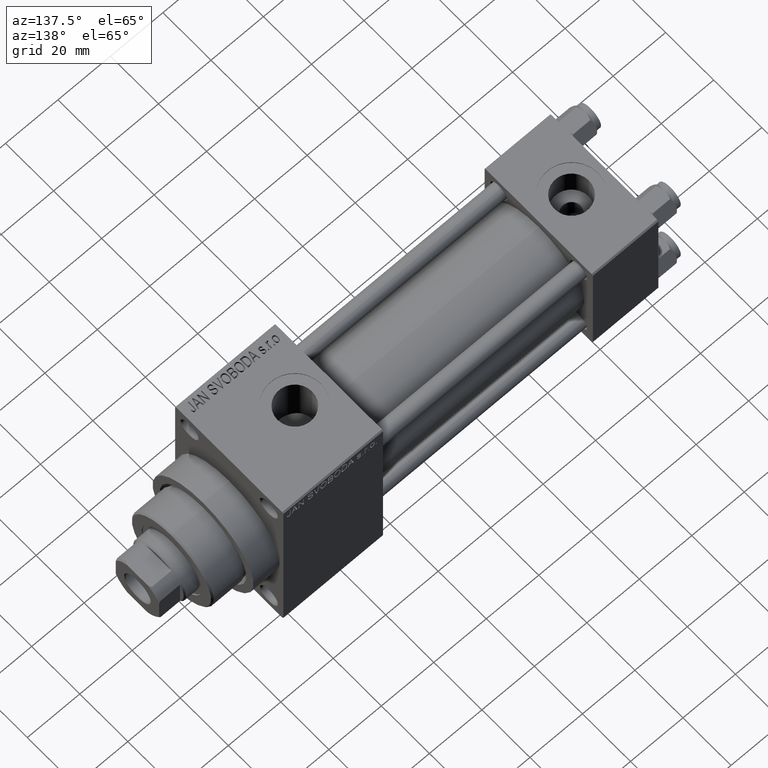
[diagram: clean part render]
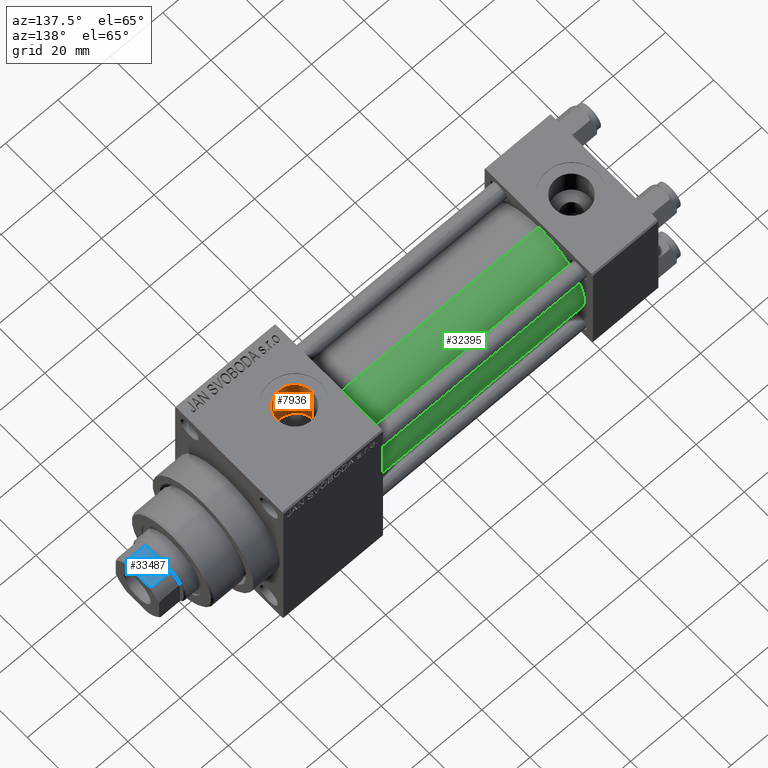
[diagram: same view with three faces highlighted in distinct colors, each labeled with its STEP entity id]
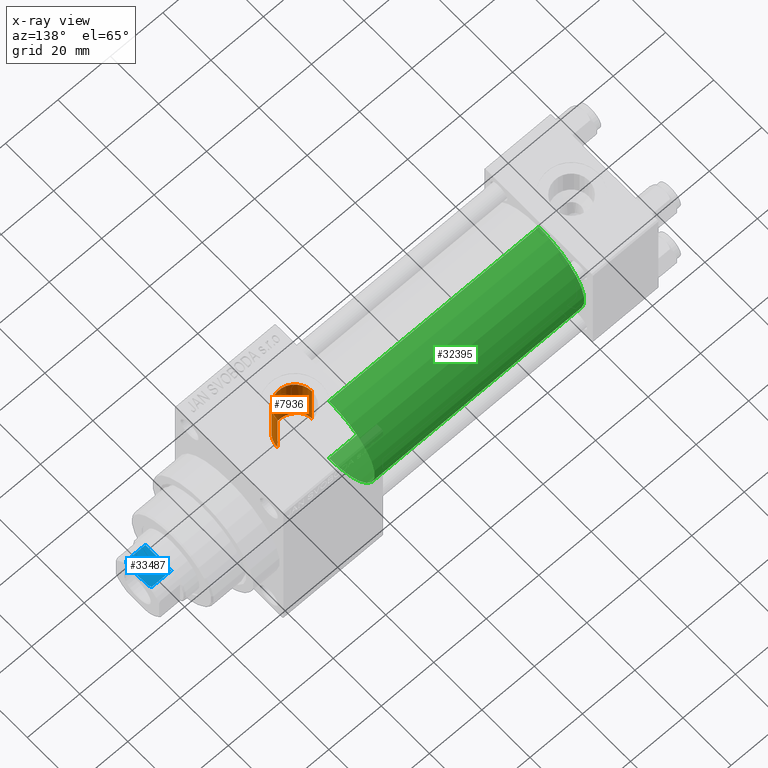
[diagram: x-ray of the same camera — body ghosted, the three highlighted faces saturated]
A machine part, auxiliary view with three faces highlighted in distinct colors.
The next image is the same camera in x-ray (body ghosted, the three faces saturated) — at least one of them is partly hidden behind the body in this view.
Their STEP definitions:

[orange] entity #7936 — the highlighted cylindrical surface (edge-blend (fillet) strip) has radius 6.58 mm, axis along (0, 0, -1).
#297 = VERTEX_POINT ( 'NONE', #19625 ) ;
#638 = CARTESIAN_POINT ( 'NONE',  ( 115.2704440975029598, -5.990990564077421254, 15.37419640914568397 ) ) ;
#668 = VECTOR ( 'NONE', #22380, 1000.000000000000000 ) ;
#692 = EDGE_LOOP ( 'NONE', ( #19908, #41699, #18288, #15638 ) ) ;
#860 = CARTESIAN_POINT ( 'NONE',  ( 118.4344031248852644, -6.579948996094833191, 15.13123495329705115 ) ) ;
#1037 = EDGE_CURVE ( 'NONE', #21866, #297, #20743, .T. ) ;
#2705 = AXIS2_PLACEMENT_3D ( 'NONE', #8547, #10452, #6847 ) ;
#3508 = CARTESIAN_POINT ( 'NONE',  ( 124.5693519230899255, -0.4330170479737218692, 16.49574474005546776 ) ) ;
#3750 = CARTESIAN_POINT ( 'NONE',  ( 122.0172106480719094, -5.228695620197086669, 15.65163649699630177 ) ) ;
#3982 = CARTESIAN_POINT ( 'NONE',  ( 123.8958771110817025, -2.929411359312366514, 16.23902307131298528 ) ) ;
#4228 = CARTESIAN_POINT ( 'NONE',  ( 124.5800000000000125, 2.020737417192725116E-15, 16.50000000000000000 ) ) ;
#4451 = CARTESIAN_POINT ( 'NONE',  ( 123.6916196678518531, -3.308819030646350079, 16.16598397392302999 ) ) ;
#4676 = LINE ( 'NONE', #33342, #668 ) ;
#4677 = DIRECTION ( 'NONE',  ( 0.000000000000000000, 0.000000000000000000, -1.000000000000000000 ) ) ;
#5835 = EDGE_CURVE ( 'NONE', #12699, #297, #37610, .T. ) ;
#6847 = DIRECTION ( 'NONE',  ( -1.000000000000000000, 0.000000000000000000, 0.000000000000000000 ) ) ;
#7327 = CARTESIAN_POINT ( 'NONE',  ( 115.8646282407915180, -6.238650567619522747, 15.27615042340678464 ) ) ;
#7800 = CARTESIAN_POINT ( 'NONE',  ( 114.6970156641613698, -5.695005786951583993, 15.48640557649249594 ) ) ;
#7936 = ADVANCED_FACE ( 'NONE', ( #26689 ), #41233, .F. ) ;
#8268 = CARTESIAN_POINT ( 'NONE',  ( 123.5810205429407205, -3.491996794519804492, 16.12727173852116280 ) ) ;
#8547 = CARTESIAN_POINT ( 'NONE',  ( 118.0000000000000142, 0.000000000000000000, 57.80000000000000426 ) ) ;
#10452 = DIRECTION ( 'NONE',  ( 0.000000000000000000, 0.000000000000000000, -1.000000000000000000 ) ) ;
#10914 = CARTESIAN_POINT ( 'NONE',  ( 114.5117512242745619, -5.583385690412080216, 15.52712872271769129 ) ) ;
#11161 = CARTESIAN_POINT ( 'NONE',  ( 124.5799999999999983, -0.2163951708881202696, 16.50000000000000355 ) ) ;
#11393 = CARTESIAN_POINT ( 'NONE',  ( 111.4200000000000017, 0.000000000000000000, 34.80000000000000426 ) ) ;
#11396 = CARTESIAN_POINT ( 'NONE',  ( 115.0765434455241802, -5.898830240844358919, 15.40992051837809207 ) ) ;
#11864 = CARTESIAN_POINT ( 'NONE',  ( 119.7233277476320694, -6.365022863224917060, 15.22317612495509742 ) ) ;
#12699 = VERTEX_POINT ( 'NONE', #11393 ) ;
#14505 = CARTESIAN_POINT ( 'NONE',  ( 122.3456735482257471, -4.959413873912082771, 15.74020882788467190 ) ) ;
#14739 = CARTESIAN_POINT ( 'NONE',  ( 124.4936266408539751, -1.084660904079432386, 16.46569860783879946 ) ) ;
#14987 = CARTESIAN_POINT ( 'NONE',  ( 113.6512765868668424, -4.956532837095939392, 15.74108251321745477 ) ) ;
#15221 = CARTESIAN_POINT ( 'NONE',  ( 112.2986720018100470, -3.312456786379075702, 16.16814806842722874 ) ) ;
#15442 = CARTESIAN_POINT ( 'NONE',  ( 121.4873752317757862, -5.583889666953453457, 15.52694180828872206 ) ) ;
#15638 = ORIENTED_EDGE ( 'NONE', *, *, #5835, .F. ) ;
#16351 = VECTOR ( 'NONE', #4677, 1000.000000000000000 ) ;
#16693 = EDGE_CURVE ( 'NONE', #30249, #21866, #4676, .T. ) ;
#16978 = DIRECTION ( 'NONE',  ( 1.000000000000000000, 0.000000000000000000, 0.000000000000000000 ) ) ;
#18288 = ORIENTED_EDGE ( 'NONE', *, *, #1037, .T. ) ;
#18319 = CARTESIAN_POINT ( 'NONE',  ( 120.7293470147492229, -5.991105852953032773, 15.37415267966568422 ) ) ;
#18553 = CARTESIAN_POINT ( 'NONE',  ( 111.7609782879799667, -2.135290433773736396, 16.36627272964048885 ) ) ;
#18796 = CARTESIAN_POINT ( 'NONE',  ( 123.9894945036596283, -2.732918497916949185, 16.27334343707126862 ) ) ;
#19025 = CARTESIAN_POINT ( 'NONE',  ( 122.9531748106135893, -4.352783460729912512, 15.91864429096167477 ) ) ;
#19625 = CARTESIAN_POINT ( 'NONE',  ( 111.4200000000000017, 0.000000000000000000, 16.50000000000000000 ) ) ;
#19908 = ORIENTED_EDGE ( 'NONE', *, *, #21626, .F. ) ;
#20743 = B_SPLINE_CURVE_WITH_KNOTS ( 'NONE', 3,
 ( #4228, #11161, #3508, #29981, #14739, #32618, #21899, #18796, #3982, #4451, #8268, #25951, #19025, #14505, #3750, #15442, #40018, #44302, #18319, #44535, #11864, #33568, #860, #33341, #47164, #40484, #7327, #638, #11396, #7800, #10914, #37156, #14987, #32855, #29045, #22614, #29283, #15221, #25720, #18553, #40727, #43587, #25483, #33097, #26179, #44071 ),
 .UNSPECIFIED., .F., .F.,
 ( 4, 2, 2, 2, 2, 2, 2, 2, 2, 2, 2, 2, 2, 2, 2, 2, 2, 2, 2, 2, 2, 2, 4 ),
 ( 0.02079064982460944802, 0.02143993797161907258, 0.02208922611862870061, 0.02338780241264794973, 0.02403709055965757777, 0.02468637870666720233, 0.02598495500068645492, 0.02728353129470570751, 0.02793281944171533554, 0.02858210758872496010, 0.02988068388274421616, 0.03117926017676346875, 0.03247783647078272135, 0.03377641276480197741, 0.03442570091181162278, 0.03507498905882126816, 0.03637356535284055892, 0.03702285349985022511, 0.03767214164685988437, 0.03897071794087918206, 0.04026929423489847976, 0.04091858238190813207, 0.04156787052891778439 ),
 .UNSPECIFIED. ) ;
#21220 = CARTESIAN_POINT ( 'NONE',  ( 124.5800000000000125, 8.058175938389587461E-16, 34.80000000000000426 ) ) ;
#21626 = EDGE_CURVE ( 'NONE', #30249, #12699, #36503, .T. ) ;
#21866 = VERTEX_POINT ( 'NONE', #35748 ) ;
#21899 = CARTESIAN_POINT ( 'NONE',  ( 124.2385873138240981, -2.135972853361014501, 16.36611806502121880 ) ) ;
#22380 = DIRECTION ( 'NONE',  ( 0.000000000000000000, 0.000000000000000000, -1.000000000000000000 ) ) ;
#22614 = CARTESIAN_POINT ( 'NONE',  ( 112.7814372671216319, -4.013576357769045089, 16.00532411629096075 ) ) ;
#24382 = DIRECTION ( 'NONE',  ( -0.000000000000000000, -0.000000000000000000, -1.000000000000000000 ) ) ;
#25483 = CARTESIAN_POINT ( 'NONE',  ( 111.4745292428209780, -0.8729223525547649132, 16.47831822833177995 ) ) ;
#25720 = CARTESIAN_POINT ( 'NONE',  ( 112.0955875116135303, -2.936455401774155316, 16.24166179831764367 ) ) ;
#25951 = CARTESIAN_POINT ( 'NONE',  ( 123.2244743407041625, -4.022809406120919640, 16.00620960271934834 ) ) ;
#26179 = CARTESIAN_POINT ( 'NONE',  ( 111.4199999999999591, -0.2197034552520739370, 16.50000000000000000 ) ) ;
#26589 = AXIS2_PLACEMENT_3D ( 'NONE', #46305, #24382, #16978 ) ;
#26689 = FACE_OUTER_BOUND ( 'NONE', #692, .T. ) ;
#29045 = CARTESIAN_POINT ( 'NONE',  ( 113.0532431112273173, -4.344167176802685049, 15.91877529168490568 ) ) ;
#29283 = CARTESIAN_POINT ( 'NONE',  ( 112.6543148114479180, -3.842567838182976647, 16.04735236386413533 ) ) ;
#29981 = CARTESIAN_POINT ( 'NONE',  ( 124.5263067313305356, -0.8667230825533497329, 16.47864950143284091 ) ) ;
#30249 = VERTEX_POINT ( 'NONE', #21220 ) ;
#32618 = CARTESIAN_POINT ( 'NONE',  ( 124.3649702280102929, -1.724140048583717943, 16.41524354912109018 ) ) ;
#32855 = CARTESIAN_POINT ( 'NONE',  ( 113.1983176667528852, -4.503976026009450351, 15.87415900356346121 ) ) ;
#33097 = CARTESIAN_POINT ( 'NONE',  ( 111.4311107855824616, -0.4398369301202784687, 16.49556026761938909 ) ) ;
#33341 = CARTESIAN_POINT ( 'NONE',  ( 117.5671433863462880, -6.580050913035224269, 15.13119063342181470 ) ) ;
#33342 = CARTESIAN_POINT ( 'NONE',  ( 124.5800000000000125, 8.058175938389587461E-16, 57.80000000000000426 ) ) ;
#33568 = CARTESIAN_POINT ( 'NONE',  ( 118.8755479247938780, -6.535808320821816508, 15.15063751048962004 ) ) ;
#35748 = CARTESIAN_POINT ( 'NONE',  ( 124.5800000000000125, 2.020737417192725116E-15, 16.50000000000000000 ) ) ;
#36503 = CIRCLE ( 'NONE', #26589, 6.580000000000002736 ) ;
#37156 = CARTESIAN_POINT ( 'NONE',  ( 113.9793091232680950, -5.226198047410674619, 15.65249317291698006 ) ) ;
#37610 = LINE ( 'NONE', #41665, #16351 ) ;
#40018 = CARTESIAN_POINT ( 'NONE',  ( 121.3045241876004923, -5.694098518824309174, 15.48673832717016907 ) ) ;
#40484 = CARTESIAN_POINT ( 'NONE',  ( 116.2794568737979120, -6.366079531685832293, 15.22273693247449877 ) ) ;
#40727 = CARTESIAN_POINT ( 'NONE',  ( 111.6344193444326720, -1.720971494404684776, 16.41548328929544809 ) ) ;
#41233 = CYLINDRICAL_SURFACE ( 'NONE', #2705, 6.580000000000002736 ) ;
#41665 = CARTESIAN_POINT ( 'NONE',  ( 111.4200000000000017, 0.000000000000000000, 57.80000000000000426 ) ) ;
#41699 = ORIENTED_EDGE ( 'NONE', *, *, #16693, .T. ) ;
#43587 = CARTESIAN_POINT ( 'NONE',  ( 111.5067982580907398, -1.086839974714738810, 16.46553180118348791 ) ) ;
#44071 = CARTESIAN_POINT ( 'NONE',  ( 111.4200000000000017, 0.000000000000000000, 16.50000000000000000 ) ) ;
#44302 = CARTESIAN_POINT ( 'NONE',  ( 120.9257113986630969, -5.897698776662511300, 15.41035272458331207 ) ) ;
#44535 = CARTESIAN_POINT ( 'NONE',  ( 120.1335790717017602, -6.239341168555348816, 15.27587318676771488 ) ) ;
#46305 = CARTESIAN_POINT ( 'NONE',  ( 118.0000000000000142, 0.000000000000000000, 34.80000000000000426 ) ) ;
#47164 = CARTESIAN_POINT ( 'NONE',  ( 117.1361420313382808, -6.537659111857249350, 15.14984163799154260 ) ) ;

[blue] entity #33487 — the highlighted planar face has unit normal (0, 0, -1).
#427 = LINE ( 'NONE', #36690, #26250 ) ;
#713 = ORIENTED_EDGE ( 'NONE', *, *, #37583, .T. ) ;
#1390 = ORIENTED_EDGE ( 'NONE', *, *, #44642, .T. ) ;
#1484 = CARTESIAN_POINT ( 'NONE',  ( -9.000000000000001776, -9.000000000000001776, 153.0000000000000284 ) ) ;
#1800 = CARTESIAN_POINT ( 'NONE',  ( 5.063687070142450786, -8.999999999999998224, 152.6775166608139500 ) ) ;
#5578 = B_SPLINE_CURVE_WITH_KNOTS ( 'NONE', 3,
 ( #42909, #24798, #39792, #29060 ),
 .UNSPECIFIED., .F., .F.,
 ( 4, 4 ),
 ( 0.000000000000000000, 0.001162453897363188238 ),
 .UNSPECIFIED. ) ;
#6305 = ORIENTED_EDGE ( 'NONE', *, *, #12363, .T. ) ;
#8015 = CARTESIAN_POINT ( 'NONE',  ( 5.408326913195988794, -8.999999999999998224, 152.5000000000000568 ) ) ;
#11640 = AXIS2_PLACEMENT_3D ( 'NONE', #1484, #37764, #37999 ) ;
#12349 = VECTOR ( 'NONE', #17431, 1000.000000000000000 ) ;
#12363 = EDGE_CURVE ( 'NONE', #42581, #38951, #18136, .T. ) ;
#12371 = EDGE_CURVE ( 'NONE', #23880, #24945, #42716, .T. ) ;
#12958 = PLANE ( 'NONE',  #11640 ) ;
#13137 = B_SPLINE_CURVE_WITH_KNOTS ( 'NONE', 3,
 ( #16850, #1800, #30913, #45471 ),
 .UNSPECIFIED., .F., .F.,
 ( 4, 4 ),
 ( 0.000000000000000000, 0.001162453897363177830 ),
 .UNSPECIFIED. ) ;
#13523 = VECTOR ( 'NONE', #36016, 1000.000000000000000 ) ;
#14652 = EDGE_LOOP ( 'NONE', ( #6305, #1390, #28955, #46591, #32692, #713 ) ) ;
#15007 = DIRECTION ( 'NONE',  ( 1.000000000000000000, 0.000000000000000000, 0.000000000000000000 ) ) ;
#16850 = CARTESIAN_POINT ( 'NONE',  ( 5.408326913195988794, -8.999999999999998224, 152.5000000000000568 ) ) ;
#17431 = DIRECTION ( 'NONE',  ( 1.000000000000000000, 0.000000000000000000, 0.000000000000000000 ) ) ;
#18136 = LINE ( 'NONE', #31740, #43204 ) ;
#20624 = CARTESIAN_POINT ( 'NONE',  ( 4.358898943540679305, -9.000000000000001776, 153.0000000000000284 ) ) ;
#21944 = CARTESIAN_POINT ( 'NONE',  ( -9.000000000000001776, -9.000000000000001776, 153.0000000000000284 ) ) ;
#23074 = CARTESIAN_POINT ( 'NONE',  ( -5.408326913195988794, -8.999999999999998224, 152.5000000000000284 ) ) ;
#23880 = VERTEX_POINT ( 'NONE', #39599 ) ;
#24798 = CARTESIAN_POINT ( 'NONE',  ( -4.714305797500255579, -9.000000000000001776, 152.8450817439748732 ) ) ;
#24945 = VERTEX_POINT ( 'NONE', #23074 ) ;
#25289 = LINE ( 'NONE', #21944, #12349 ) ;
#25699 = CARTESIAN_POINT ( 'NONE',  ( 5.408326913195988794, -8.999999999999998224, 145.0000000000000284 ) ) ;
#26250 = VECTOR ( 'NONE', #15007, 1000.000000000000000 ) ;
#27628 = VERTEX_POINT ( 'NONE', #45341 ) ;
#27819 = EDGE_CURVE ( 'NONE', #27628, #37765, #25289, .T. ) ;
#27938 = CARTESIAN_POINT ( 'NONE',  ( -5.408326913195988794, -8.999999999999998224, -0.001000000000001000089 ) ) ;
#28955 = ORIENTED_EDGE ( 'NONE', *, *, #27819, .F. ) ;
#29060 = CARTESIAN_POINT ( 'NONE',  ( -5.408326913195988794, -8.999999999999998224, 152.5000000000000284 ) ) ;
#30913 = CARTESIAN_POINT ( 'NONE',  ( 4.714305797500247586, -9.000000000000001776, 152.8450817439748732 ) ) ;
#31740 = CARTESIAN_POINT ( 'NONE',  ( 5.408326913195988794, -8.999999999999998224, -0.001000000000001000089 ) ) ;
#32692 = ORIENTED_EDGE ( 'NONE', *, *, #12371, .F. ) ;
#33487 = ADVANCED_FACE ( 'NONE', ( #37522 ), #12958, .F. ) ;
#36016 = DIRECTION ( 'NONE',  ( -0.000000000000000000, -0.000000000000000000, 1.000000000000000000 ) ) ;
#36690 = CARTESIAN_POINT ( 'NONE',  ( -9.000000000000001776, -9.000000000000001776, 145.0000000000000284 ) ) ;
#37522 = FACE_OUTER_BOUND ( 'NONE', #14652, .T. ) ;
#37583 = EDGE_CURVE ( 'NONE', #23880, #42581, #427, .T. ) ;
#37764 = DIRECTION ( 'NONE',  ( 0.000000000000000000, 1.000000000000000000, 0.000000000000000000 ) ) ;
#37765 = VERTEX_POINT ( 'NONE', #20624 ) ;
#37999 = DIRECTION ( 'NONE',  ( 0.000000000000000000, -0.000000000000000000, 1.000000000000000000 ) ) ;
#38951 = VERTEX_POINT ( 'NONE', #8015 ) ;
#39599 = CARTESIAN_POINT ( 'NONE',  ( -5.408326913195988794, -8.999999999999998224, 145.0000000000000284 ) ) ;
#39792 = CARTESIAN_POINT ( 'NONE',  ( -5.063687070142449009, -9.000000000000001776, 152.6775166608139500 ) ) ;
#39829 = DIRECTION ( 'NONE',  ( -0.000000000000000000, -0.000000000000000000, 1.000000000000000000 ) ) ;
#42581 = VERTEX_POINT ( 'NONE', #25699 ) ;
#42716 = LINE ( 'NONE', #27938, #13523 ) ;
#42909 = CARTESIAN_POINT ( 'NONE',  ( -4.358898943540679305, -9.000000000000001776, 153.0000000000000284 ) ) ;
#43204 = VECTOR ( 'NONE', #39829, 1000.000000000000000 ) ;
#44642 = EDGE_CURVE ( 'NONE', #38951, #37765, #13137, .T. ) ;
#45341 = CARTESIAN_POINT ( 'NONE',  ( -4.358898943540679305, -9.000000000000001776, 153.0000000000000284 ) ) ;
#45471 = CARTESIAN_POINT ( 'NONE',  ( 4.358898943540679305, -9.000000000000001776, 153.0000000000000284 ) ) ;
#46591 = ORIENTED_EDGE ( 'NONE', *, *, #46713, .T. ) ;
#46713 = EDGE_CURVE ( 'NONE', #27628, #24945, #5578, .T. ) ;

[green] entity #32395 — the highlighted cylindrical surface (partial cylindrical patch) has radius 19 mm, axis along (-1, -0, -0).
#3239 = DIRECTION ( 'NONE',  ( 1.000000000000000000, 0.000000000000000000, 0.000000000000000000 ) ) ;
#5715 = VERTEX_POINT ( 'NONE', #43136 ) ;
#8286 = DIRECTION ( 'NONE',  ( 1.000000000000000000, -0.000000000000000000, 0.000000000000000000 ) ) ;
#12346 = AXIS2_PLACEMENT_3D ( 'NONE', #25809, #19106, #44847 ) ;
#14479 = AXIS2_PLACEMENT_3D ( 'NONE', #45249, #8286, #41681 ) ;
#14635 = LINE ( 'NONE', #42786, #41459 ) ;
#15271 = CIRCLE ( 'NONE', #14479, 19.00000000000000000 ) ;
#19106 = DIRECTION ( 'NONE',  ( -1.000000000000000000, -0.000000000000000000, -0.000000000000000000 ) ) ;
#21399 = CARTESIAN_POINT ( 'NONE',  ( 105.0000000000000142, -2.602085213965210642E-15, 0.000000000000000000 ) ) ;
#21589 = EDGE_LOOP ( 'NONE', ( #38770, #22134, #40329, #36871 ) ) ;
#22134 = ORIENTED_EDGE ( 'NONE', *, *, #39179, .T. ) ;
#22979 = EDGE_CURVE ( 'NONE', #38058, #5715, #15271, .T. ) ;
#24461 = LINE ( 'NONE', #43684, #24794 ) ;
#24794 = VECTOR ( 'NONE', #32479, 1000.000000000000000 ) ;
#24862 = CARTESIAN_POINT ( 'NONE',  ( 105.0000000000000142, -2.752562955852396712E-16, -19.00000000000000000 ) ) ;
#25326 = CYLINDRICAL_SURFACE ( 'NONE', #12346, 19.00000000000000000 ) ;
#25809 = CARTESIAN_POINT ( 'NONE',  ( 105.0000000000000142, -2.602085213965210642E-15, 0.000000000000000000 ) ) ;
#29119 = VERTEX_POINT ( 'NONE', #24862 ) ;
#30813 = CARTESIAN_POINT ( 'NONE',  ( 24.99999999999999289, -2.752562955852396712E-16, -19.00000000000000000 ) ) ;
#32044 = DIRECTION ( 'NONE',  ( -1.000000000000000000, -0.000000000000000000, -0.000000000000000000 ) ) ;
#32395 = ADVANCED_FACE ( 'NONE', ( #32474 ), #25326, .T. ) ;
#32474 = FACE_OUTER_BOUND ( 'NONE', #21589, .T. ) ;
#32479 = DIRECTION ( 'NONE',  ( -1.000000000000000000, -0.000000000000000000, -0.000000000000000000 ) ) ;
#32660 = CARTESIAN_POINT ( 'NONE',  ( 105.0000000000000142, -2.602085213965210642E-15, 19.00000000000000000 ) ) ;
#33897 = CIRCLE ( 'NONE', #36944, 19.00000000000000000 ) ;
#36813 = EDGE_CURVE ( 'NONE', #40146, #5715, #14635, .T. ) ;
#36871 = ORIENTED_EDGE ( 'NONE', *, *, #36813, .F. ) ;
#36944 = AXIS2_PLACEMENT_3D ( 'NONE', #21399, #3239, #45966 ) ;
#38058 = VERTEX_POINT ( 'NONE', #30813 ) ;
#38770 = ORIENTED_EDGE ( 'NONE', *, *, #38868, .F. ) ;
#38868 = EDGE_CURVE ( 'NONE', #29119, #40146, #33897, .T. ) ;
#39179 = EDGE_CURVE ( 'NONE', #29119, #38058, #24461, .T. ) ;
#40146 = VERTEX_POINT ( 'NONE', #32660 ) ;
#40329 = ORIENTED_EDGE ( 'NONE', *, *, #22979, .T. ) ;
#41459 = VECTOR ( 'NONE', #32044, 1000.000000000000000 ) ;
#41681 = DIRECTION ( 'NONE',  ( 0.000000000000000000, 0.000000000000000000, 1.000000000000000000 ) ) ;
#42786 = CARTESIAN_POINT ( 'NONE',  ( 105.0000000000000142, -2.602085213965210642E-15, 19.00000000000000000 ) ) ;
#43136 = CARTESIAN_POINT ( 'NONE',  ( 24.99999999999999289, -2.602085213965210642E-15, 19.00000000000000000 ) ) ;
#43684 = CARTESIAN_POINT ( 'NONE',  ( 105.0000000000000142, -2.752562955852396712E-16, -19.00000000000000000 ) ) ;
#44847 = DIRECTION ( 'NONE',  ( 0.000000000000000000, 0.000000000000000000, 1.000000000000000000 ) ) ;
#45249 = CARTESIAN_POINT ( 'NONE',  ( 24.99999999999999289, -2.602085213965210642E-15, 0.000000000000000000 ) ) ;
#45966 = DIRECTION ( 'NONE',  ( 0.000000000000000000, 0.000000000000000000, -1.000000000000000000 ) ) ;